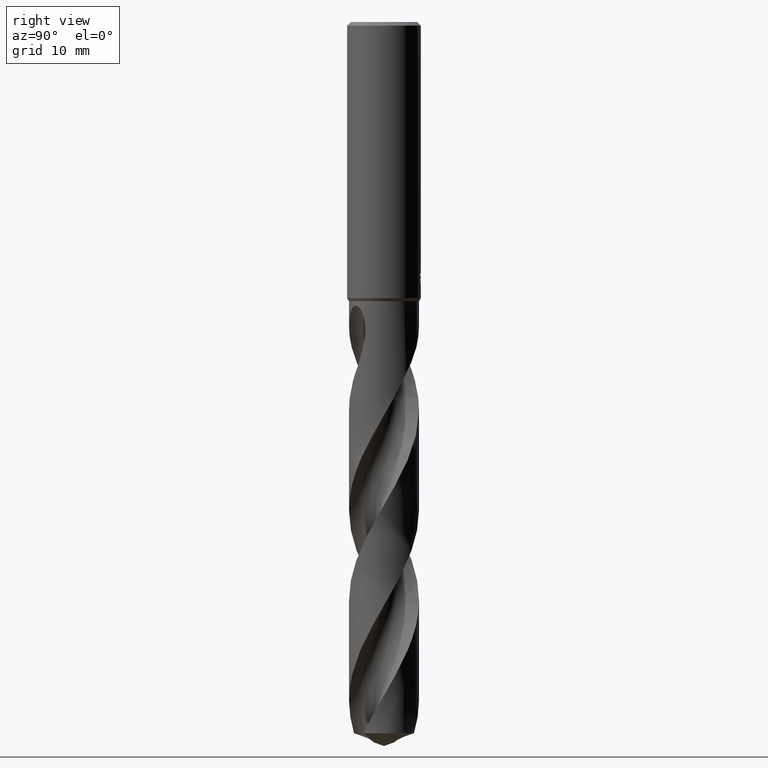
[diagram: clean part render]
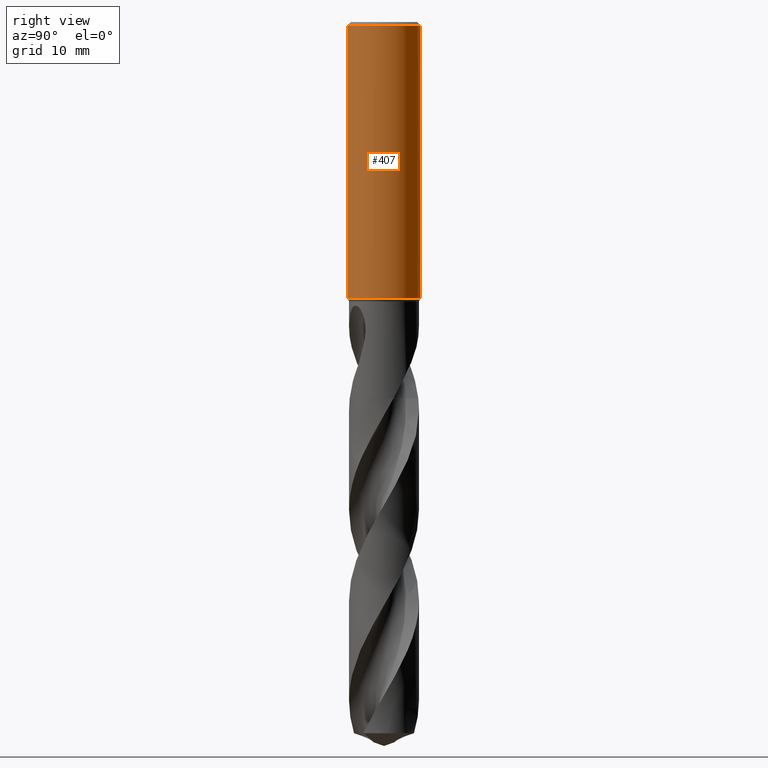
[diagram: same view with one face highlighted and labeled with its STEP entity id]
A machine part, right view. The second image highlights one B-rep face of the part: STEP entity #407.
In plain terms, the highlighted cylindrical surface (partial cylindrical patch) has radius 6 mm, axis along (-0, -0, 1).
Its self-contained STEP definition (entity closure, byte-faithful):
#335=EDGE_CURVE('',#553,#699,#870,.T.);
#343=EDGE_CURVE('',#523,#449,#878,.T.);
#353=EDGE_CURVE('',#435,#479,#888,.T.);
#357=EDGE_CURVE('',#465,#755,#892,.T.);
#407=ADVANCED_FACE('',(#947),#948,.T.);
#413=VERTEX_POINT('',#954);
#435=VERTEX_POINT('',#977);
#449=VERTEX_POINT('',#994);
#457=VERTEX_POINT('',#1002);
#465=VERTEX_POINT('',#1010);
#479=VERTEX_POINT('',#1025);
#485=EDGE_CURVE('',#707,#699,#1032,.T.);
#491=EDGE_CURVE('',#413,#523,#1038,.T.);
#503=EDGE_CURVE('',#707,#449,#1053,.T.);
#523=VERTEX_POINT('',#1074);
#527=EDGE_CURVE('',#457,#413,#1078,.T.);
#553=VERTEX_POINT('',#1105);
#621=EDGE_CURVE('',#755,#553,#1182,.T.);
#645=VERTEX_POINT('',#1211);
#659=EDGE_CURVE('',#645,#435,#1228,.T.);
#675=EDGE_CURVE('',#465,#645,#1246,.T.);
#699=VERTEX_POINT('',#1272);
#707=VERTEX_POINT('',#1280);
#733=EDGE_CURVE('',#479,#457,#1307,.T.);
#755=VERTEX_POINT('',#1330);
#870=LINE('',#1576,#1577);
#878=B_SPLINE_CURVE_WITH_KNOTS('',3,(#1598,#1599,#1600,#1601,#1602,#1603,#1604,#1605,#1606,#1607,#1608,#1609,#1610,#1611,#1612,#1613,#1614,#1615,#1616,#1617,#1618,#1619,#1620,#1621,#1622,#1623,#1624),.UNSPECIFIED.,.F.,.F.,(4,2,3,2,2,2,2,2,2,2,2,2,4),(-0.542204134993822,-0.271102067496911,0.0,0.271102067496911,0.542204134993821,0.813702489471782,1.08520084394974,1.35603748887758,1.62687413380543,1.89790609484719,2.16893805588896,2.43997001693073,2.71100197797249),.UNSPECIFIED.);
#888=LINE('',#1693,#1694);
#892=LINE('',#1701,#1702);
#947=FACE_OUTER_BOUND('',#2312,.T.);
#948=CYLINDRICAL_SURFACE('',#2313,6.0);
#954=CARTESIAN_POINT('',(1.33721006514658,5.84909131760402,-40.5150484364821));
#977=CARTESIAN_POINT('',(0.873560781758957,5.93606701112552,-41.3198931596091));
#994=CARTESIAN_POINT('',(4.30282158127811E-015,6.0,-41.0232688117743));
#1002=CARTESIAN_POINT('',(1.33721006514658,5.84909131760402,-42.2901657003257));
#1010=CARTESIAN_POINT('',(-1.000126236349E-015,6.0,-43.0310253601033));
#1025=CARTESIAN_POINT('',(0.873560781758956,5.93606701112552,-42.7587351791531));
#1032=CIRCLE('',#4114,6.0);
#1038=B_SPLINE_CURVE_WITH_KNOTS('',3,(#4120,#4121,#4122,#4123,#4124,#4125,#4126,#4127,#4128,#4129),.UNSPECIFIED.,.F.,.F.,(4,2,2,2,4),(0.616864768993534,0.925297153490302,1.23372953798707,1.54196894672892,1.85020835547076),.UNSPECIFIED.);
#1053=LINE('',#4147,#4148);
#1074=CARTESIAN_POINT('',(0.799431726384364,5.94650392372275,-40.000000276873));
#1078=LINE('',#4275,#4276);
#1105=CARTESIAN_POINT('',(7.34763812293426E-016,-6.0,-45.0));
#1182=CIRCLE('',#6313,6.0);
#1211=CARTESIAN_POINT('',(0.29010312703583,5.99298257762227,-42.9998328990228));
#1228=ELLIPSE('',#7443,18.2879674402186,6.0);
#1246=B_SPLINE_CURVE_WITH_KNOTS('',3,(#7467,#7468,#7469,#7470,#7471,#7472,#7473,#7474,#7475,#7476,#7477,#7478,#7479,#7480,#7481,#7482),.UNSPECIFIED.,.F.,.F.,(4,2,2,2,2,2,2,4),(5.86022917063912,6.16870405720903,6.47725847293827,6.78581288866751,7.09436730439676,7.402921720126,7.71116114554584,8.01940057096568),.UNSPECIFIED.);
#1272=CARTESIAN_POINT('',(7.34763812293426E-016,-6.0,-0.600000000000001));
#1280=CARTESIAN_POINT('',(0.0,6.0,-0.600000000000001));
#1307=B_SPLINE_CURVE_WITH_KNOTS('',3,(#8302,#8303,#8304,#8305,#8306,#8307,#8308,#8309,#8310,#8311),.UNSPECIFIED.,.F.,.F.,(4,2,2,2,4),(8.01939987363182,8.32763927191416,8.6358786701965,8.94431104401671,9.25274341783691),.UNSPECIFIED.);
#1330=CARTESIAN_POINT('',(0.0,6.0,-45.0));
#1576=CARTESIAN_POINT('',(7.34763812293426E-016,-6.0,-22.8));
#1577=VECTOR('',#8933,1.0);
#1598=CARTESIAN_POINT('',(0.665038279511986,5.96302977409838,-39.8135117776465));
#1599=CARTESIAN_POINT('',(0.728716101835783,5.95592798339707,-39.8772374280006));
#1600=CARTESIAN_POINT('',(0.783974665019777,5.94867668154847,-39.9579557273851));
#1601=CARTESIAN_POINT('',(0.857320507570535,5.93854966257537,-40.1349694534753));
#1602=CARTESIAN_POINT('',(0.875400981188567,5.93579591311343,-40.2312746567545));
#1603=CARTESIAN_POINT('',(0.875400981188567,5.93579591311343,-40.3216420125868));
#1604=CARTESIAN_POINT('',(0.875400981188567,5.93579591311343,-40.4120093684191));
#1605=CARTESIAN_POINT('',(0.857320507570535,5.93854966257537,-40.5083145716983));
#1606=CARTESIAN_POINT('',(0.783974665019777,5.94867668154847,-40.6853282977885));
#1607=CARTESIAN_POINT('',(0.728716101835784,5.95592798339707,-40.766046597173));
#1608=CARTESIAN_POINT('',(0.601267375301349,5.97014194593481,-40.8935910496813));
#1609=CARTESIAN_POINT('',(0.52050089626908,5.97804010501944,-40.9489349030958));
#1610=CARTESIAN_POINT('',(0.343370231624616,5.99082478161003,-41.0224010244896));
#1611=CARTESIAN_POINT('',(0.246995041657254,5.9955970178221,-41.0405166027747));
#1612=CARTESIAN_POINT('',(0.066278235124748,6.00031311449822,-41.0405166027747));
#1613=CARTESIAN_POINT('',(-0.0299950498794653,6.00057849353559,-41.0224799292738));
#1614=CARTESIAN_POINT('',(-0.207070170783241,5.99707961466003,-40.949146253936));
#1615=CARTESIAN_POINT('',(-0.287875322309355,5.99343072940708,-40.8938517989794));
#1616=CARTESIAN_POINT('',(-0.415515670858363,5.98593657913032,-40.7662728045656));
#1617=CARTESIAN_POINT('',(-0.470860335647626,5.98160913098325,-40.6854535363062));
#1618=CARTESIAN_POINT('',(-0.544278095376138,5.97537602271911,-40.5083128294691));
#1619=CARTESIAN_POINT('',(-0.562348199187247,5.97358891311336,-40.4119859996007));
#1620=CARTESIAN_POINT('',(-0.562348199187247,5.97358891311336,-40.2312980255729));
#1621=CARTESIAN_POINT('',(-0.544278095376141,5.97537602271911,-40.1349711957045));
#1622=CARTESIAN_POINT('',(-0.470860335647634,5.98160913098325,-39.9578304888674));
#1623=CARTESIAN_POINT('',(-0.415515670858364,5.98593657913032,-39.8770112206079));
#1624=CARTESIAN_POINT('',(-0.351672492652108,5.98968500489899,-39.8131987305268));
#1693=CARTESIAN_POINT('',(0.873560781758957,5.93606701112552,-42.0393141693811));
#1694=VECTOR('',#8941,1.0);
#1701=CARTESIAN_POINT('',(-7.34763812293426E-016,6.0,-22.8));
#1702=VECTOR('',#8943,1.0);
#2312=EDGE_LOOP('',(#8984,#8985,#8986,#8987,#8988,#8989,#8990,#8991,#8992,#8993,#8994,#8995));
#2313=AXIS2_PLACEMENT_3D('',#8996,#8997,#8998);
#4114=AXIS2_PLACEMENT_3D('',#9059,#9060,#9061);
#4120=CARTESIAN_POINT('',(1.47572255922527,5.81568937686614,-40.7778857706544));
#4121=CARTESIAN_POINT('',(1.43408414695966,5.82625505721574,-40.6776366099009));
#4122=CARTESIAN_POINT('',(1.38231447896357,5.83891732292942,-40.5816487554591));
#4123=CARTESIAN_POINT('',(1.26287133719122,5.86591039891312,-40.404259737123));
#4124=CARTESIAN_POINT('',(1.19518872778899,5.88021296420216,-40.3228604278537));
#4125=CARTESIAN_POINT('',(1.05112183874896,5.90766593069519,-40.1788296843787));
#4126=CARTESIAN_POINT('',(0.969743089830991,5.92179330445672,-40.111188656323));
#4127=CARTESIAN_POINT('',(0.792381475667972,5.94812316600191,-39.9918074082397));
#4128=CARTESIAN_POINT('',(0.696400454612605,5.96029984760923,-39.9400587582751));
#4129=CARTESIAN_POINT('',(0.596162331669374,5.97030907694891,-39.8984402290046));
#4147=CARTESIAN_POINT('',(-7.34763812293426E-016,6.0,-22.8));
#4148=VECTOR('',#9089,1.0);
#4275=CARTESIAN_POINT('',(1.33721006514658,5.84909131760402,-41.4026070684039));
#4276=VECTOR('',#9103,1.0);
#6313=AXIS2_PLACEMENT_3D('',#9224,#9225,#9226);
#7443=AXIS2_PLACEMENT_3D('',#9324,#9325,#9326);
#7467=CARTESIAN_POINT('',(-1.37942962388976,5.83927854385585,-42.3120938518854));
#7468=CARTESIAN_POINT('',(-1.3197524098915,5.85337626434356,-42.4007460556891));
#7469=CARTESIAN_POINT('',(-1.25213007147997,5.86835238153676,-42.4821006164436));
#7470=CARTESIAN_POINT('',(-1.10815476297052,5.89723538536299,-42.6261133873133));
#7471=CARTESIAN_POINT('',(-1.02679168998259,5.91217036370492,-42.6937759496578));
#7472=CARTESIAN_POINT('',(-0.849449577088966,5.94024368186983,-42.8132077327803));
#7473=CARTESIAN_POINT('',(-0.75347222810614,5.95335623661259,-42.8649855238005));
#7474=CARTESIAN_POINT('',(-0.552969605024409,5.97531551411668,-42.9482857310807));
#7475=CARTESIAN_POINT('',(-0.448275455975639,5.98416266823847,-42.9798740542996));
#7476=CARTESIAN_POINT('',(-0.237398161173605,5.99623180317797,-43.0213727490831));
#7477=CARTESIAN_POINT('',(-0.131212492151728,5.9994467834274,-43.0312723335086));
#7478=CARTESIAN_POINT('',(0.0743831578630581,6.00041865072596,-43.0312723335086));
#7479=CARTESIAN_POINT('',(0.180490238104753,5.99821260764714,-43.021392590677));
#7480=CARTESIAN_POINT('',(0.391259717323761,5.98815890288379,-42.9799476485545));
#7481=CARTESIAN_POINT('',(0.495924498667214,5.98031828233743,-42.948392857806));
#7482=CARTESIAN_POINT('',(0.596162626581452,5.9703090475006,-42.9067743263419));
#8302=CARTESIAN_POINT('',(0.596162353925366,5.97030907472655,-42.9067738917094));
#8303=CARTESIAN_POINT('',(0.696400473442532,5.96029984535159,-42.865155363849));
#8304=CARTESIAN_POINT('',(0.792381491214139,5.94812316388512,-42.8134067156396));
#8305=CARTESIAN_POINT('',(0.969743099309515,5.92179330285852,-42.6940254716034));
#8306=CARTESIAN_POINT('',(1.05112184544356,5.90766592947307,-42.6263844458399));
#8307=CARTESIAN_POINT('',(1.19518872950838,5.8802129638209,-42.4823537072831));
#8308=CARTESIAN_POINT('',(1.26287133655555,5.86591039902768,-42.4009544008203));
#8309=CARTESIAN_POINT('',(1.38231447417469,5.83891732404075,-42.2235653885997));
#8310=CARTESIAN_POINT('',(1.43408414037219,5.82625505882607,-42.1275775374671));
#8311=CARTESIAN_POINT('',(1.47572255119055,5.81568937890493,-42.0273283801715));
#8933=DIRECTION('',(-0.0,-0.0,1.0));
#8941=DIRECTION('',(0.0,0.0,-1.0));
#8943=DIRECTION('',(0.0,0.0,-1.0));
#8984=ORIENTED_EDGE('',*,*,#503,.F.);
#8985=ORIENTED_EDGE('',*,*,#485,.T.);
#8986=ORIENTED_EDGE('',*,*,#335,.F.);
#8987=ORIENTED_EDGE('',*,*,#621,.F.);
#8988=ORIENTED_EDGE('',*,*,#357,.F.);
#8989=ORIENTED_EDGE('',*,*,#675,.T.);
#8990=ORIENTED_EDGE('',*,*,#659,.T.);
#8991=ORIENTED_EDGE('',*,*,#353,.T.);
#8992=ORIENTED_EDGE('',*,*,#733,.T.);
#8993=ORIENTED_EDGE('',*,*,#527,.T.);
#8994=ORIENTED_EDGE('',*,*,#491,.T.);
#8995=ORIENTED_EDGE('',*,*,#343,.T.);
#8996=CARTESIAN_POINT('',(0.0,0.0,-22.8));
#8997=DIRECTION('',(-0.0,-0.0,1.0));
#8998=DIRECTION('',(0.0,1.0,0.0));
#9059=CARTESIAN_POINT('',(0.0,0.0,-0.600000000000001));
#9060=DIRECTION('',(0.0,0.0,-1.0));
#9061=DIRECTION('',(0.0,1.0,0.0));
#9089=DIRECTION('',(0.0,0.0,-1.0));
#9103=DIRECTION('',(-0.0,-0.0,1.0));
#9224=CARTESIAN_POINT('',(0.0,0.0,-45.0));
#9225=DIRECTION('',(0.0,0.0,-1.0));
#9226=DIRECTION('',(0.0,1.0,0.0));
#9324=CARTESIAN_POINT('',(0.0,0.0,-43.8351219173269));
#9325=DIRECTION('',(0.944648353914092,0.0,-0.328084573619969));
#9326=DIRECTION('',(0.328084573619969,-0.0,0.944648353914092));